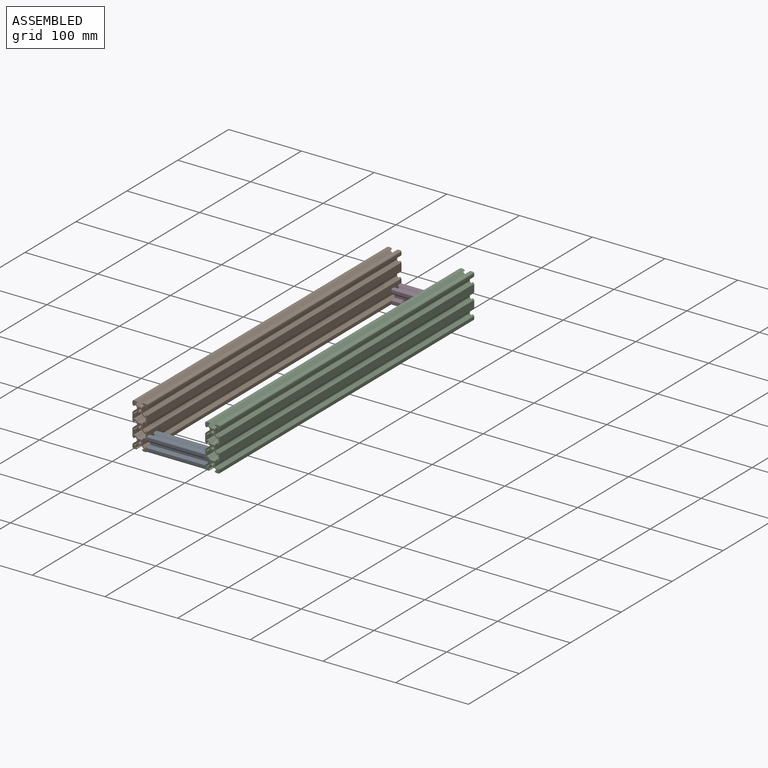
[diagram: assembled view]
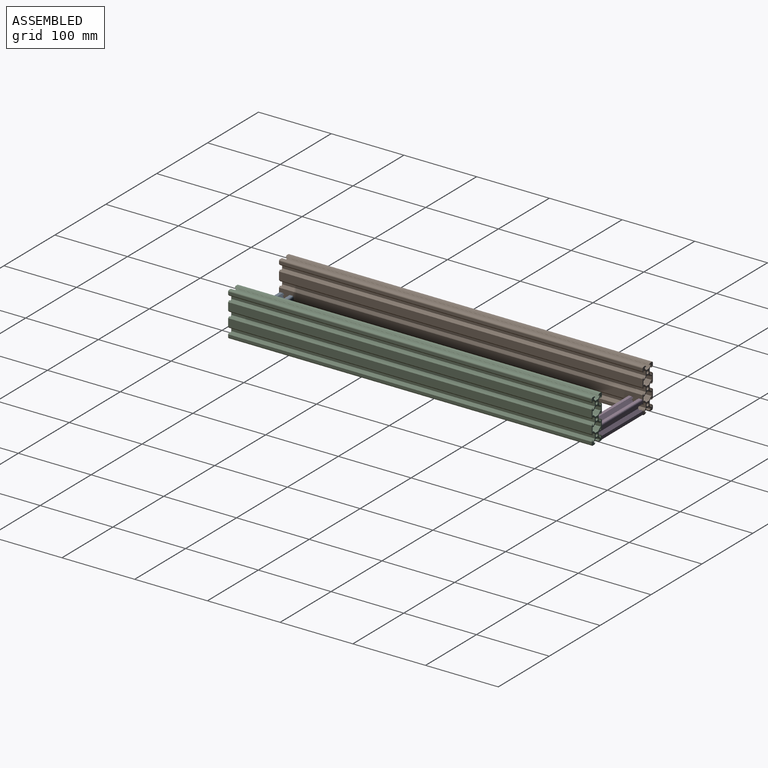
[diagram: assembled view, second angle]
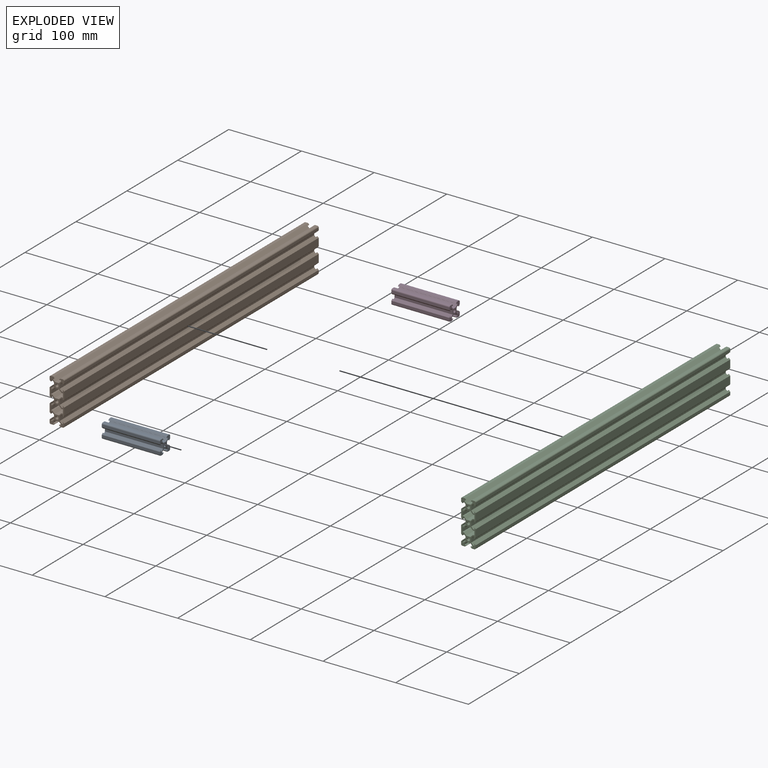
[diagram: exploded view]
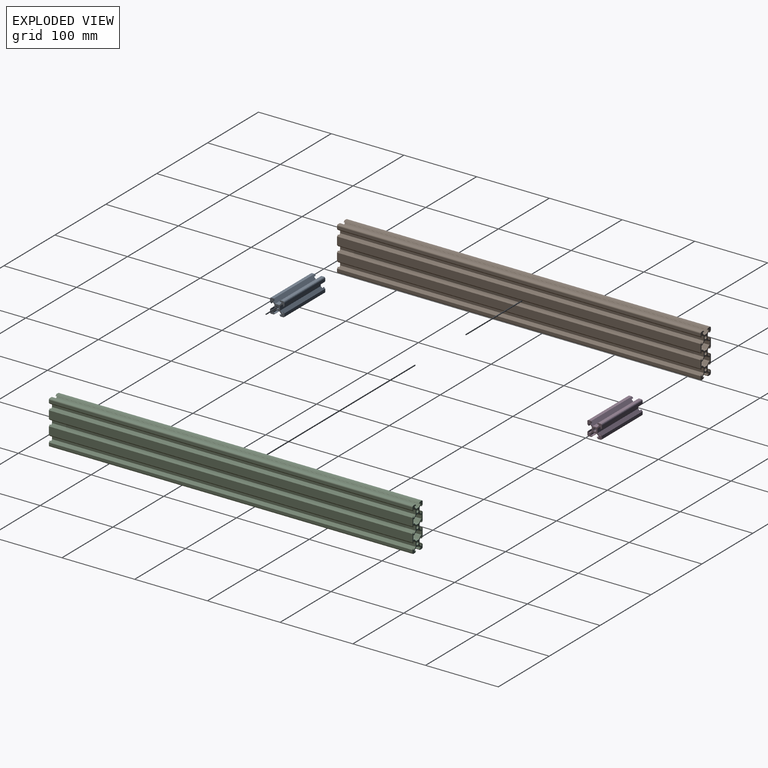
[diagram: exploded view, second angle]
ASSEMBLY  parts=4 mates=3
PART A: 51 faces, bbox 20x80x20 mm
  f0: plane 80x1.8mm, normal (0.71,0,0.71), area 203.6mm2, adj f1,f48,f49,f50
  f1: plane 80x3.56mm, normal (0,0,1), area 284.8mm2, adj f0,f2,f49,f50
  f2: cylinder r=1.8mm len=80mm, axis (0,1,0), area 226.2mm2, adj f1,f3,f49,f50
  f3: plane 80x3.56mm, normal (-1,0,0), area 284.8mm2, adj f2,f4,f49,f50
  f4: plane 80x1.8mm, normal (-0.71,0,-0.71), area 203.6mm2, adj f3,f5,f49,f50
  f5: plane 80x2.66mm, normal (1,0,0), area 212.7mm2, adj f4,f6,f49,f50
  f6: plane 80x1.64mm, normal (0,0,-1), area 131.2mm2, adj f5,f7,f49,f50
  f7: plane 80x2.66mm, normal (-0.71,0,-0.71), area 300.9mm2, adj f6,f8,f49,f50
  f8: plane 80x5.68mm, normal (-1,0,0), area 454.4mm2, adj f7,f9,f49,f50
  f9: plane 80x2.66mm, normal (-0.71,0,0.71), area 300.9mm2, adj f8,f10,f49,f50
  f10: plane 80x1.64mm, normal (0,0,1), area 131.2mm2, adj f9,f11,f49,f50
  f11: plane 80x2.66mm, normal (1,0,0), area 212.7mm2, adj f10,f12,f49,f50
  f12: plane 80x1.8mm, normal (-0.71,0,0.71), area 203.6mm2, adj f11,f13,f49,f50
  f13: plane 80x3.56mm, normal (-1,0,0), area 284.8mm2, adj f12,f14,f49,f50
  f14: cylinder r=1.8mm len=80mm, axis (0,1,0), area 226.2mm2, adj f13,f15,f49,f50
  f15: plane 80x3.56mm, normal (0,0,-1), area 284.8mm2, adj f14,f16,f49,f50
  f16: plane 80x1.8mm, normal (0.71,0,-0.71), area 203.6mm2, adj f15,f17,f49,f50
  f17: plane 80x2.66mm, normal (0,0,1), area 212.7mm2, adj f16,f18,f49,f50
  f18: plane 80x1.64mm, normal (1,0,0), area 131.2mm2, adj f17,f19,f49,f50
  f19: plane 80x2.66mm, normal (0.71,0,-0.71), area 300.9mm2, adj f18,f20,f49,f50
  f20: plane 80x5.68mm, normal (0,0,-1), area 454.4mm2, adj f19,f21,f49,f50
  f21: plane 80x2.66mm, normal (-0.71,0,-0.71), area 300.9mm2, adj f20,f22,f49,f50
  f22: plane 80x1.64mm, normal (-1,0,0), area 131.2mm2, adj f21,f23,f49,f50
  f23: plane 80x2.66mm, normal (0,0,1), area 212.7mm2, adj f22,f24,f49,f50
  f24: plane 80x1.8mm, normal (-0.71,0,-0.71), area 203.6mm2, adj f23,f25,f49,f50
  f25: plane 80x3.56mm, normal (0,0,-1), area 284.8mm2, adj f24,f26,f49,f50
  f26: cylinder r=1.8mm len=80mm, axis (0,1,0), area 226.2mm2, adj f25,f27,f49,f50
  f27: plane 80x3.56mm, normal (1,0,0), area 284.8mm2, adj f26,f28,f49,f50
  f28: plane 80x1.8mm, normal (0.71,0,0.71), area 203.6mm2, adj f27,f29,f49,f50
  f29: plane 80x2.66mm, normal (-1,0,0), area 212.7mm2, adj f28,f30,f49,f50
  f30: plane 80x1.64mm, normal (0,0,1), area 131.2mm2, adj f29,f31,f49,f50
  f31: plane 80x2.66mm, normal (0.71,0,0.71), area 300.9mm2, adj f30,f32,f49,f50
  f32: plane 80x5.68mm, normal (1,0,0), area 454.4mm2, adj f31,f33,f49,f50
  f33: plane 80x2.66mm, normal (0.71,0,-0.71), area 300.9mm2, adj f32,f34,f49,f50
  f34: plane 80x1.64mm, normal (0,0,-1), area 131.2mm2, adj f33,f35,f49,f50
  f35: plane 80x2.66mm, normal (-1,0,0), area 212.7mm2, adj f34,f36,f49,f50
  f36: plane 80x1.8mm, normal (0.71,0,-0.71), area 203.6mm2, adj f35,f37,f49,f50
  f37: plane 80x3.56mm, normal (1,0,0), area 284.8mm2, adj f36,f38,f49,f50
  f38: cylinder r=1.8mm len=80mm, axis (0,1,0), area 226.2mm2, adj f37,f39,f49,f50
  f39: plane 80x3.56mm, normal (0,0,1), area 284.8mm2, adj f38,f40,f49,f50
  f40: plane 80x1.8mm, normal (-0.71,0,0.71), area 203.6mm2, adj f39,f41,f49,f50
  f41: plane 80x2.66mm, normal (0,0,-1), area 212.7mm2, adj f40,f42,f49,f50
  f42: plane 80x1.64mm, normal (-1,0,0), area 131.2mm2, adj f41,f43,f49,f50
  f43: plane 80x2.66mm, normal (-0.71,0,0.71), area 300.9mm2, adj f42,f44,f49,f50
  f44: plane 80x5.68mm, normal (0,0,1), area 454.4mm2, adj f43,f45,f49,f50
  f45: plane 80x2.66mm, normal (0.71,0,0.71), area 300.9mm2, adj f44,f46,f49,f50
  f46: plane 80x1.64mm, normal (1,0,0), area 131.2mm2, adj f45,f48,f49,f50
  f47: cylinder r=2.1mm len=80mm, axis (0,1,0), area 1055.6mm2, adj f49,f50
  f48: plane 80x2.66mm, normal (0,0,-1), area 212.7mm2, adj f0,f46,f49,f50
  f49: plane 20x20mm, normal (0,-1,0), area 168.6mm2, adj f0,f1,f2,f3,f4,f5,f6,f7
  f50: plane 20x20mm, normal (0,1,0), area 168.6mm2, adj f0,f1,f2,f3,f4,f5,f6,f7
PART B: 117 faces, bbox 20x500x60 mm
  f0: plane 500x5.68mm, normal (0,0,1), area 2840mm2, adj f1,f114,f115,f116
  f1: plane 500x3.4mm, normal (0.71,0,0.71), area 2403.2mm2, adj f0,f2,f115,f116
  f2: plane 500x1.96mm, normal (0,0,1), area 980.7mm2, adj f1,f3,f115,f116
  f3: plane 500x5.4mm, normal (1,0,0), area 2700.7mm2, adj f2,f4,f115,f116
  f4: plane 500x1.96mm, normal (0,0,-1), area 980.7mm2, adj f3,f5,f115,f116
  f5: plane 500x3.4mm, normal (0.71,0,-0.71), area 2403.2mm2, adj f4,f6,f115,f116
  f6: plane 500x5.68mm, normal (0,0,-1), area 2840mm2, adj f5,f7,f115,f116
  f7: plane 500x3.4mm, normal (-0.71,0,-0.71), area 2403.2mm2, adj f6,f8,f115,f116
  f8: plane 500x1.96mm, normal (0,0,-1), area 980.7mm2, adj f7,f9,f115,f116
  f9: plane 500x5.4mm, normal (-1,0,0), area 2700.7mm2, adj f8,f10,f115,f116
  f10: plane 500x1.96mm, normal (0,0,1), area 980.7mm2, adj f9,f114,f115,f116
  f11: plane 500x5.68mm, normal (0,0,1), area 2840mm2, adj f12,f109,f115,f116
  f12: plane 500x3.4mm, normal (0.71,0,0.71), area 2403.2mm2, adj f11,f13,f115,f116
  f13: plane 500x1.96mm, normal (0,0,1), area 980.7mm2, adj f12,f14,f115,f116
  f14: plane 500x5.4mm, normal (1,0,0), area 2700.7mm2, adj f13,f15,f115,f116
  f15: plane 500x1.96mm, normal (0,0,-1), area 980.7mm2, adj f14,f16,f115,f116
  f16: plane 500x3.4mm, normal (0.71,0,-0.71), area 2403.2mm2, adj f15,f17,f115,f116
  f17: plane 500x5.68mm, normal (0,0,-1), area 2840mm2, adj f16,f18,f115,f116
  f18: plane 500x3.4mm, normal (-0.71,0,-0.71), area 2403.2mm2, adj f17,f19,f115,f116
  f19: plane 500x1.96mm, normal (0,0,-1), area 980.7mm2, adj f18,f20,f115,f116
  f20: plane 500x5.4mm, normal (-1,0,0), area 2700.7mm2, adj f19,f21,f115,f116
  f21: plane 500x1.96mm, normal (0,0,1), area 980.7mm2, adj f20,f109,f115,f116
  f22: plane 500x1.64mm, normal (0,0,1), area 820mm2, adj f23,f110,f115,f116
  f23: plane 500x2.66mm, normal (0.71,0,0.71), area 1880.4mm2, adj f22,f24,f115,f116
  f24: plane 500x5.68mm, normal (1,0,0), area 2840mm2, adj f23,f25,f115,f116
  f25: plane 500x2.66mm, normal (0.71,0,-0.71), area 1880.4mm2, adj f24,f26,f115,f116
  f26: plane 500x1.64mm, normal (0,0,-1), area 820mm2, adj f25,f27,f115,f116
  f27: plane 500x2.66mm, normal (-1,0,0), area 1329.7mm2, adj f26,f28,f115,f116
  f28: plane 500x1.8mm, normal (0.71,0,-0.71), area 1272.8mm2, adj f27,f29,f115,f116
  f29: plane 500x3.56mm, normal (1,0,0), area 1780mm2, adj f28,f30,f115,f116
  f30: cylinder r=1.8mm len=500mm, axis (0,1,0), area 1413.7mm2, adj f29,f31,f115,f116
  f31: plane 500x3.56mm, normal (0,0,1), area 1780mm2, adj f30,f32,f115,f116
  f32: plane 500x1.8mm, normal (-0.71,0,0.71), area 1272.8mm2, adj f31,f33,f115,f116
  f33: plane 500x2.66mm, normal (0,0,-1), area 1329.7mm2, adj f32,f34,f115,f116
  f34: plane 500x1.64mm, normal (-1,0,0), area 820mm2, adj f33,f35,f115,f116
  f35: plane 500x2.66mm, normal (-0.71,0,0.71), area 1880.4mm2, adj f34,f36,f115,f116
  f36: plane 500x5.68mm, normal (0,0,1), area 2840mm2, adj f35,f37,f115,f116
  f37: plane 500x2.66mm, normal (0.71,0,0.71), area 1880.4mm2, adj f36,f38,f115,f116
  f38: plane 500x1.64mm, normal (1,0,0), area 820mm2, adj f37,f39,f115,f116
  f39: plane 500x2.66mm, normal (0,0,-1), area 1329.7mm2, adj f38,f40,f115,f116
  f40: plane 500x1.8mm, normal (0.71,0,0.71), area 1272.8mm2, adj f39,f41,f115,f116
  f41: plane 500x3.56mm, normal (0,0,1), area 1780mm2, adj f40,f42,f115,f116
  f42: cylinder r=1.8mm len=500mm, axis (0,1,0), area 1413.7mm2, adj f41,f43,f115,f116
  f43: plane 500x3.56mm, normal (-1,0,0), area 1780mm2, adj f42,f44,f115,f116
  f44: plane 500x1.8mm, normal (-0.71,0,-0.71), area 1272.8mm2, adj f43,f45,f115,f116
  f45: plane 500x2.66mm, normal (1,0,0), area 1329.7mm2, adj f44,f46,f115,f116
  f46: plane 500x1.64mm, normal (0,0,-1), area 820mm2, adj f45,f47,f115,f116
  f47: plane 500x2.66mm, normal (-0.71,0,-0.71), area 1880.4mm2, adj f46,f48,f115,f116
  f48: plane 500x5.68mm, normal (-1,0,0), area 2840mm2, adj f47,f49,f115,f116
  f49: plane 500x2.66mm, normal (-0.71,0,0.71), area 1880.4mm2, adj f48,f50,f115,f116
  f50: plane 500x1.64mm, normal (0,0,1), area 820mm2, adj f49,f51,f115,f116
  f51: plane 500x2.66mm, normal (1,0,0), area 1329.7mm2, adj f50,f52,f115,f116
  f52: plane 500x1.8mm, normal (-0.71,0,0.71), area 1272.8mm2, adj f51,f53,f115,f116
  f53: plane 500x10.72mm, normal (-1,0,0), area 5360mm2, adj f52,f54,f115,f116
  f54: plane 500x1.8mm, normal (-0.71,0,-0.71), area 1272.8mm2, adj f53,f55,f115,f116
  f55: plane 500x2.66mm, normal (1,0,0), area 1329.7mm2, adj f54,f56,f115,f116
  f56: plane 500x1.64mm, normal (0,0,-1), area 820mm2, adj f55,f57,f115,f116
  f57: plane 500x2.66mm, normal (-0.71,0,-0.71), area 1880.4mm2, adj f56,f58,f115,f116
  f58: plane 500x5.68mm, normal (-1,0,0), area 2840mm2, adj f57,f59,f115,f116
  f59: plane 500x2.66mm, normal (-0.71,0,0.71), area 1880.4mm2, adj f58,f60,f115,f116
  f60: plane 500x1.64mm, normal (0,0,1), area 820mm2, adj f59,f61,f115,f116
  f61: plane 500x2.66mm, normal (1,0,0), area 1329.7mm2, adj f60,f62,f115,f116
  f62: plane 500x1.8mm, normal (-0.71,0,0.71), area 1272.8mm2, adj f61,f63,f115,f116
  f63: plane 500x10.72mm, normal (-1,0,0), area 5360mm2, adj f62,f64,f115,f116
  f64: plane 500x1.8mm, normal (-0.71,0,-0.71), area 1272.8mm2, adj f63,f65,f115,f116
  f65: plane 500x2.66mm, normal (1,0,0), area 1329.7mm2, adj f64,f66,f115,f116
  f66: plane 500x1.64mm, normal (0,0,-1), area 820mm2, adj f65,f67,f115,f116
  f67: plane 500x2.66mm, normal (-0.71,0,-0.71), area 1880.4mm2, adj f66,f68,f115,f116
  f68: plane 500x5.68mm, normal (-1,0,0), area 2840mm2, adj f67,f69,f115,f116
  f69: plane 500x2.66mm, normal (-0.71,0,0.71), area 1880.4mm2, adj f68,f70,f115,f116
  f70: plane 500x1.64mm, normal (0,0,1), area 820mm2, adj f69,f71,f115,f116
  f71: plane 500x2.66mm, normal (1,0,0), area 1329.7mm2, adj f70,f72,f115,f116
  f72: plane 500x1.8mm, normal (-0.71,0,0.71), area 1272.8mm2, adj f71,f73,f115,f116
  f73: plane 500x3.56mm, normal (-1,0,0), area 1780mm2, adj f72,f74,f115,f116
  f74: cylinder r=1.8mm len=500mm, axis (0,1,0), area 1413.7mm2, adj f73,f75,f115,f116
  f75: plane 500x3.56mm, normal (0,0,-1), area 1780mm2, adj f74,f76,f115,f116
  f76: plane 500x1.8mm, normal (0.71,0,-0.71), area 1272.8mm2, adj f75,f77,f115,f116
  f77: plane 500x2.66mm, normal (0,0,1), area 1329.7mm2, adj f76,f78,f115,f116
  f78: plane 500x1.64mm, normal (1,0,0), area 820mm2, adj f77,f79,f115,f116
  f79: plane 500x2.66mm, normal (0.71,0,-0.71), area 1880.4mm2, adj f78,f80,f115,f116
  f80: plane 500x5.68mm, normal (0,0,-1), area 2840mm2, adj f79,f81,f115,f116
  f81: plane 500x2.66mm, normal (-0.71,0,-0.71), area 1880.4mm2, adj f80,f82,f115,f116
  f82: plane 500x1.64mm, normal (-1,0,0), area 820mm2, adj f81,f83,f115,f116
  f83: plane 500x2.66mm, normal (0,0,1), area 1329.7mm2, adj f82,f84,f115,f116
  f84: plane 500x1.8mm, normal (-0.71,0,-0.71), area 1272.8mm2, adj f83,f85,f115,f116
  f85: plane 500x3.56mm, normal (0,0,-1), area 1780mm2, adj f84,f86,f115,f116
  f86: cylinder r=1.8mm len=500mm, axis (0,1,0), area 1413.7mm2, adj f85,f87,f115,f116
  f87: plane 500x3.56mm, normal (1,0,0), area 1780mm2, adj f86,f88,f115,f116
  f88: plane 500x1.8mm, normal (0.71,0,0.71), area 1272.8mm2, adj f87,f89,f115,f116
  f89: plane 500x2.66mm, normal (-1,0,0), area 1329.7mm2, adj f88,f90,f115,f116
  f90: plane 500x1.64mm, normal (0,0,1), area 820mm2, adj f89,f91,f115,f116
  f91: plane 500x2.66mm, normal (0.71,0,0.71), area 1880.4mm2, adj f90,f92,f115,f116
  f92: plane 500x5.68mm, normal (1,0,0), area 2840mm2, adj f91,f93,f115,f116
  f93: plane 500x2.66mm, normal (0.71,0,-0.71), area 1880.4mm2, adj f92,f94,f115,f116
  f94: plane 500x1.64mm, normal (0,0,-1), area 820mm2, adj f93,f95,f115,f116
  f95: plane 500x2.66mm, normal (-1,0,0), area 1329.7mm2, adj f94,f96,f115,f116
  f96: plane 500x1.8mm, normal (0.71,0,-0.71), area 1272.8mm2, adj f95,f97,f115,f116
  f97: plane 500x10.72mm, normal (1,0,0), area 5360mm2, adj f96,f98,f115,f116
  f98: plane 500x1.8mm, normal (0.71,0,0.71), area 1272.8mm2, adj f97,f99,f115,f116
  f99: plane 500x2.66mm, normal (-1,0,0), area 1329.7mm2, adj f98,f100,f115,f116
  f100: plane 500x1.64mm, normal (0,0,1), area 820mm2, adj f99,f101,f115,f116
  f101: plane 500x2.66mm, normal (0.71,0,0.71), area 1880.4mm2, adj f100,f102,f115,f116
  f102: plane 500x5.68mm, normal (1,0,0), area 2840mm2, adj f101,f103,f115,f116
  f103: plane 500x2.66mm, normal (0.71,0,-0.71), area 1880.4mm2, adj f102,f104,f115,f116
  f104: plane 500x1.64mm, normal (0,0,-1), area 820mm2, adj f103,f105,f115,f116
  f105: plane 500x2.66mm, normal (-1,0,0), area 1329.7mm2, adj f104,f106,f115,f116
  f106: plane 500x1.8mm, normal (0.71,0,-0.71), area 1272.8mm2, adj f105,f107,f115,f116
  f107: plane 500x10.72mm, normal (1,0,0), area 5360mm2, adj f106,f108,f115,f116
  f108: plane 500x1.8mm, normal (0.71,0,0.71), area 1272.8mm2, adj f107,f110,f115,f116
  f109: plane 500x3.4mm, normal (-0.71,0,0.71), area 2403.2mm2, adj f11,f21,f115,f116
  f110: plane 500x2.66mm, normal (-1,0,0), area 1329.7mm2, adj f22,f108,f115,f116
  f111: cylinder r=2.1mm len=500mm, axis (0,1,0), area 6597.3mm2, adj f115,f116
  f112: cylinder r=2.1mm len=500mm, axis (0,1,0), area 6597.3mm2, adj f115,f116
  f113: cylinder r=2.1mm len=500mm, axis (0,1,0), area 6597.3mm2, adj f115,f116
  f114: plane 500x3.4mm, normal (-0.71,0,0.71), area 2403.2mm2, adj f0,f10,f115,f116
  f115: plane 60x20mm, normal (0,-1,0), area 425.6mm2, adj f0,f1,f2,f3,f4,f5,f6,f7
  f116: plane 60x20mm, normal (0,1,0), area 425.6mm2, adj f0,f1,f2,f3,f4,f5,f6,f7
PART C: same geometry as B
PART D: same geometry as A
PLACE A rot(axis=(-0.58,-0.58,-0.58),120deg) t=(8.12,-171.86,-76.69)mm
PLACE B t=(-8.99,328.14,-79.12)mm
PLACE C t=(91.01,328.14,-78.98)mm
PLACE D rot(axis=(0,0,1),90deg) t=(-71.88,309.94,-78.63)mm
MATE fastened A.f49 <-> B.f97  axis (-1,0,0) through (-71.88,-170.06,-58.49)mm
MATE fastened A.f50 <-> C.f73  axis (1,0,0) through (8.12,-171.86,-76.69)mm
MATE fastened D.f50 <-> B.f87  axis (-1,0,0) through (-71.88,328.14,-76.83)mm
